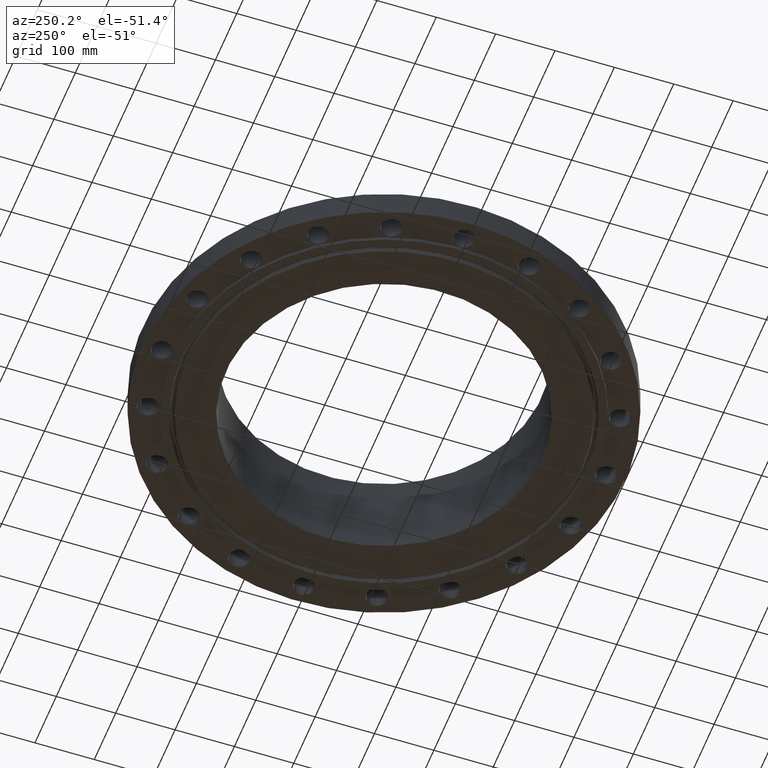
[diagram: clean part render]
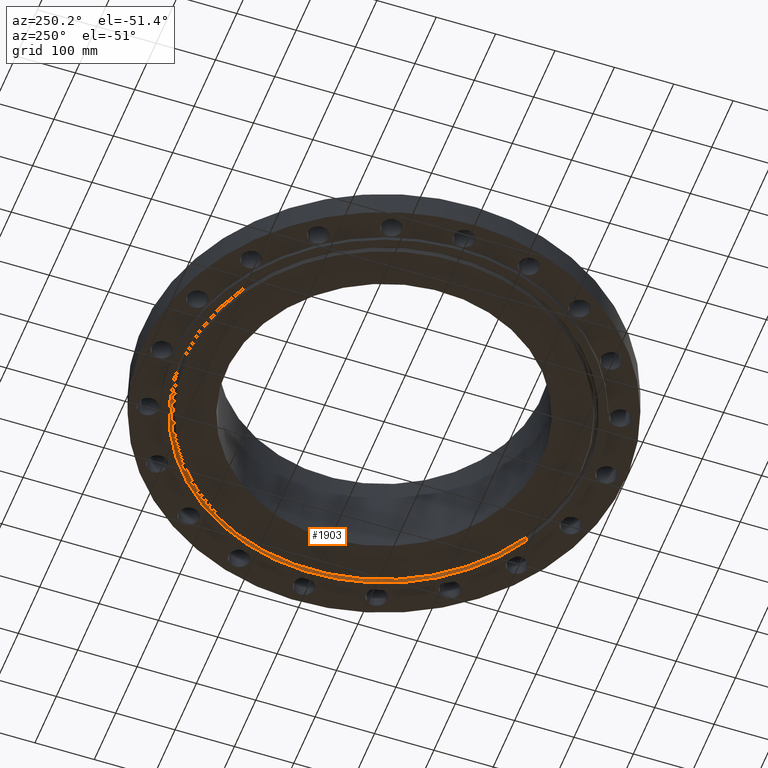
[diagram: same view with one face highlighted and labeled with its STEP entity id]
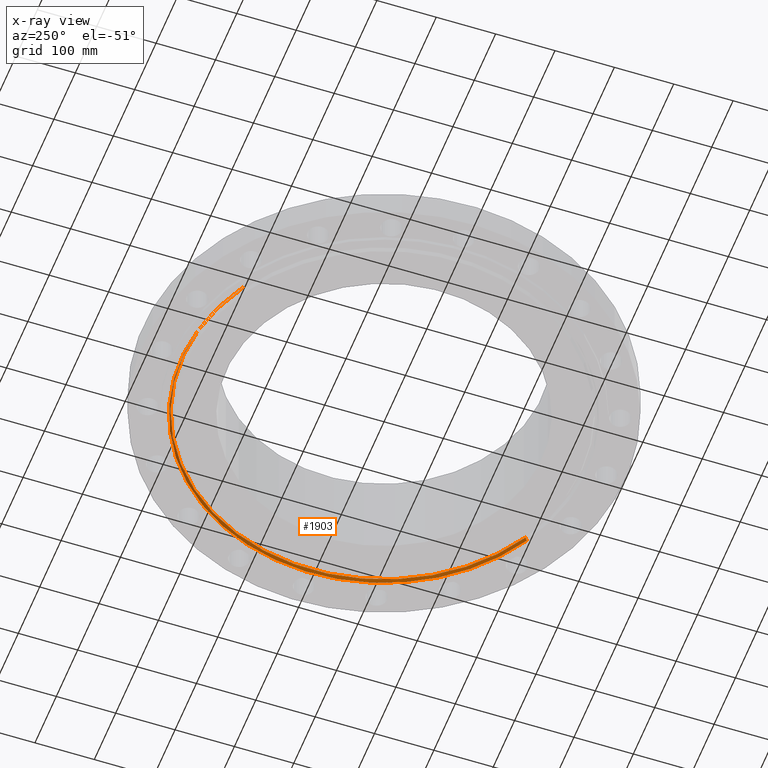
[diagram: x-ray of the same camera — body ghosted, the highlighted face saturated]
A machine part, auxiliary view. The second image highlights one B-rep face of the part: STEP entity #1903.
The next image is the same camera in x-ray: the body ghosted, the highlighted face saturated — about 0% of this face is hidden behind the body in this view.
In plain terms, the highlighted conical surface has half-angle 23 deg.
Its self-contained STEP definition (entity closure, byte-faithful):
#1764=AXIS2_PLACEMENT_3D('Circle Axis2P3D',#1762,#1763,$) ;
#1838=AXIS2_PLACEMENT_3D('Cone Axis2P3D',#1835,#1836,#1837) ;
#1859=AXIS2_PLACEMENT_3D('Circle Axis2P3D',#1857,#1858,$) ;
#1757=CARTESIAN_POINT('Vertex',(6.43478965098,-11.7788034479,-0.250000000001)) ;
#1759=CARTESIAN_POINT('Vertex',(-6.43478965098,11.7788034479,-0.250000000001)) ;
#1762=CARTESIAN_POINT('Axis2P3D Location',(1.1189649382E-015,4.47585975282E-015,-0.250000000001)) ;
#1804=CARTESIAN_POINT('Vertex',(-6.3877882808,11.6927680169,-0.0190396522348)) ;
#1806=CARTESIAN_POINT('Vertex',(6.3877882808,-11.6927680169,-0.0190396522348)) ;
#1835=CARTESIAN_POINT('Axis2P3D Location',(0.,0.,-0.0190396522348)) ;
#1840=CARTESIAN_POINT('Line Origine',(-6.41128896589,11.7357857324,-0.134519826118)) ;
#1845=CARTESIAN_POINT('Line Origine',(6.41128896589,-11.7357857324,-0.134519826118)) ;
#1857=CARTESIAN_POINT('Axis2P3D Location',(0.,0.,-0.0190396522348)) ;
#1763=DIRECTION('Axis2P3D Direction',(0.,0.,-0.0393700787402)) ;
#1836=DIRECTION('Axis2P3D Direction',(-0.,-0.,-0.0393700787402)) ;
#1837=DIRECTION('Axis2P3D XDirection',(-0.0188750212049,0.0345504945626,0.)) ;
#1841=DIRECTION('Vector Direction',(-0.00737505833565,0.0134999537303,-0.0362403485611)) ;
#1846=DIRECTION('Vector Direction',(0.00737505833565,-0.0134999537303,-0.0362403485611)) ;
#1858=DIRECTION('Axis2P3D Direction',(0.,0.,0.0393700787402)) ;
#1842=VECTOR('Line Direction',#1841,0.0393700787402) ;
#1847=VECTOR('Line Direction',#1846,0.0393700787402) ;
#1898=ORIENTED_EDGE('',*,*,#1766,.T.) ;
#1899=ORIENTED_EDGE('',*,*,#1849,.T.) ;
#1900=ORIENTED_EDGE('',*,*,#1861,.T.) ;
#1901=ORIENTED_EDGE('',*,*,#1844,.F.) ;
#1903=ADVANCED_FACE('PartBody',(#1902),#1839,.F.) ;
#1765=CIRCLE('generated circle',#1764,13.4218750001) ;
#1860=CIRCLE('generated circle',#1859,13.3238381489) ;
#1839=CONICAL_SURFACE('Cone',#1838,13.3238381489,0.401425727959) ;
#1766=EDGE_CURVE('',#1760,#1758,#1765,.T.) ;
#1844=EDGE_CURVE('',#1760,#1805,#1843,.F.) ;
#1849=EDGE_CURVE('',#1758,#1807,#1848,.F.) ;
#1861=EDGE_CURVE('',#1807,#1805,#1860,.T.) ;
#1897=EDGE_LOOP('',(#1898,#1899,#1900,#1901)) ;
#1902=FACE_OUTER_BOUND('',#1897,.T.) ;
#1843=LINE('Line',#1840,#1842) ;
#1848=LINE('Line',#1845,#1847) ;
#1758=VERTEX_POINT('',#1757) ;
#1760=VERTEX_POINT('',#1759) ;
#1805=VERTEX_POINT('',#1804) ;
#1807=VERTEX_POINT('',#1806) ;